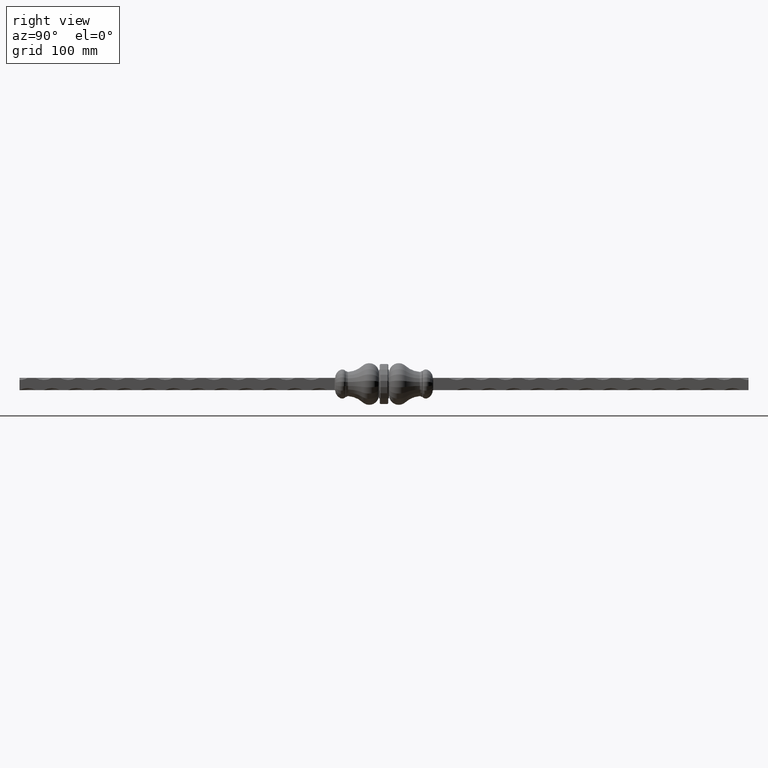
[diagram: clean part render]
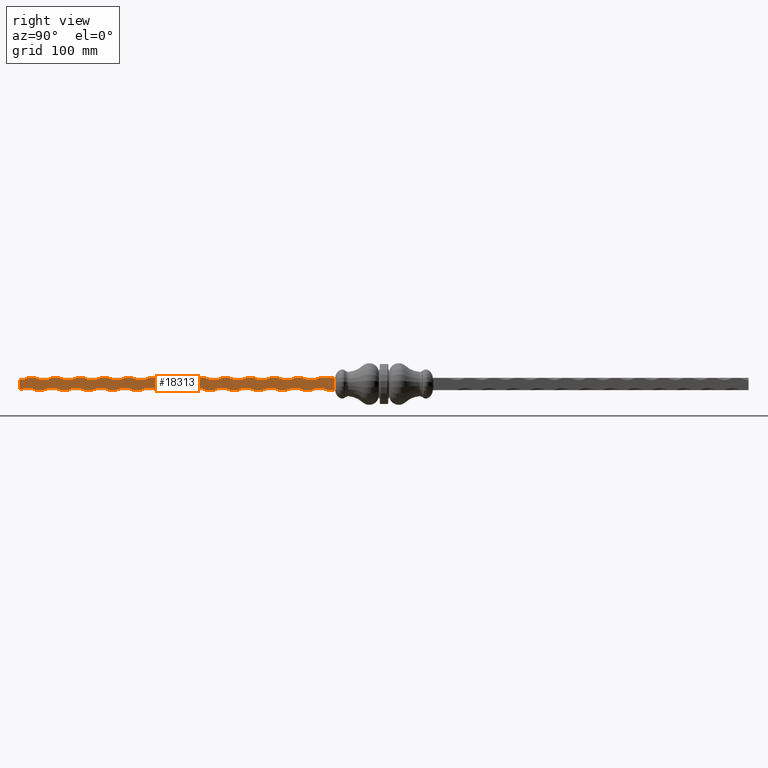
[diagram: same view with one face highlighted and labeled with its STEP entity id]
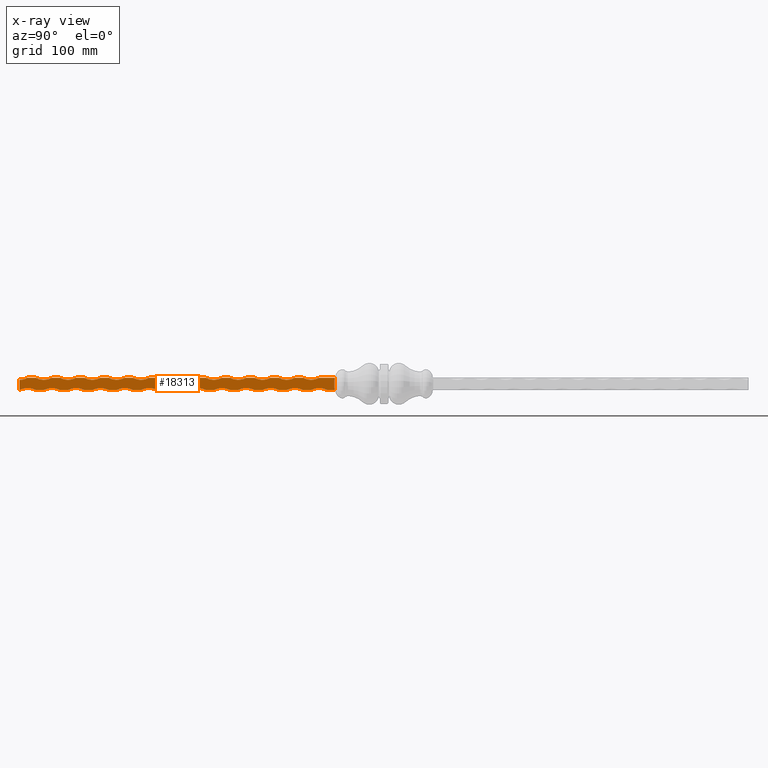
[diagram: x-ray of the same camera — body ghosted, the highlighted face saturated]
A machine part, right view. The second image highlights one B-rep face of the part: STEP entity #18313.
The next image is the same camera in x-ray: the body ghosted, the highlighted face saturated — about 0% of this face is hidden behind the body in this view.
In plain terms, the highlighted planar face has unit normal (-1, 0, 0).
Its self-contained STEP definition (entity closure, byte-faithful):
#38 = ORIENTED_EDGE ( 'NONE', *, *, #4519, .T. ) ;
#56 = DIRECTION ( 'NONE',  ( 1.000000000000000000, -0.000000000000000000, -1.156482317317871478E-16 ) ) ;
#57 = AXIS2_PLACEMENT_3D ( 'NONE', #19237, #8404, #10575 ) ;
#141 = CIRCLE ( 'NONE', #57, 21.25000000000003553 ) ;
#171 = VERTEX_POINT ( 'NONE', #2277 ) ;
#244 = CARTESIAN_POINT ( 'NONE',  ( 7.500000000000001776, 450.0000000000000000, 7.499999999999998224 ) ) ;
#403 = CARTESIAN_POINT ( 'NONE',  ( 7.500000000000004441, -300.0000000000000000, 26.25000000000003197 ) ) ;
#568 = ORIENTED_EDGE ( 'NONE', *, *, #13285, .F. ) ;
#579 = VERTEX_POINT ( 'NONE', #1769 ) ;
#605 = AXIS2_PLACEMENT_3D ( 'NONE', #27104, #5479, #26919 ) ;
#620 = LINE ( 'NONE', #20549, #9075 ) ;
#633 = VERTEX_POINT ( 'NONE', #9054 ) ;
#660 = DIRECTION ( 'NONE',  ( -1.000000000000000000, 0.000000000000000000, 1.156482317317871478E-16 ) ) ;
#667 = EDGE_CURVE ( 'NONE', #579, #22342, #19952, .T. ) ;
#708 = EDGE_CURVE ( 'NONE', #11900, #20075, #15874, .T. ) ;
#709 = CARTESIAN_POINT ( 'NONE',  ( 7.500000000000000000, -61.12594891179882239, -5.587195937505716081 ) ) ;
#721 = VERTEX_POINT ( 'NONE', #20083 ) ;
#740 = VERTEX_POINT ( 'NONE', #24669 ) ;
#767 = DIRECTION ( 'NONE',  ( -0.000000000000000000, -1.000000000000000000, -0.000000000000000000 ) ) ;
#1055 = ORIENTED_EDGE ( 'NONE', *, *, #15077, .T. ) ;
#1172 = CARTESIAN_POINT ( 'NONE',  ( 7.500000000000000000, 450.0000000000000000, -7.500000000000001776 ) ) ;
#1218 = VERTEX_POINT ( 'NONE', #23211 ) ;
#1247 = ORIENTED_EDGE ( 'NONE', *, *, #16725, .F. ) ;
#1338 = CARTESIAN_POINT ( 'NONE',  ( 7.500000000000001776, -60.78303146263080947, 7.499999999999998224 ) ) ;
#1339 = VERTEX_POINT ( 'NONE', #19548 ) ;
#1364 = AXIS2_PLACEMENT_3D ( 'NONE', #14146, #3300, #20865 ) ;
#1401 = DIRECTION ( 'NONE',  ( 1.000000000000000000, -0.000000000000000000, -1.156482317317871478E-16 ) ) ;
#1446 = ORIENTED_EDGE ( 'NONE', *, *, #17472, .F. ) ;
#1494 = CARTESIAN_POINT ( 'NONE',  ( 7.500000000000004441, -239.9999999999999432, 26.25000000000003197 ) ) ;
#1515 = AXIS2_PLACEMENT_3D ( 'NONE', #28102, #6592, #15338 ) ;
#1534 = EDGE_CURVE ( 'NONE', #4331, #13459, #15178, .T. ) ;
#1595 = EDGE_CURVE ( 'NONE', #1597, #24989, #5695, .T. ) ;
#1597 = VERTEX_POINT ( 'NONE', #2613 ) ;
#1627 = EDGE_CURVE ( 'NONE', #721, #26566, #18844, .T. ) ;
#1637 = VECTOR ( 'NONE', #20370, 1000.000000000000000 ) ;
#1702 = CARTESIAN_POINT ( 'NONE',  ( 7.500000000000004441, -90.00000000000002842, 26.25000000000003197 ) ) ;
#1745 = CARTESIAN_POINT ( 'NONE',  ( 7.500000000000001776, -220.0000000000000284, 7.499999999999998224 ) ) ;
#1769 = CARTESIAN_POINT ( 'NONE',  ( 7.500000000000000000, -120.0000000000000568, -7.500000000000000000 ) ) ;
#1776 = EDGE_CURVE ( 'NONE', #13647, #3378, #3659, .T. ) ;
#1787 = DIRECTION ( 'NONE',  ( -0.000000000000000000, -1.000000000000000000, -0.000000000000000000 ) ) ;
#1833 = LINE ( 'NONE', #21567, #6991 ) ;
#1847 = ORIENTED_EDGE ( 'NONE', *, *, #10016, .T. ) ;
#1954 = FACE_OUTER_BOUND ( 'NONE', #9462, .T. ) ;
#2034 = EDGE_CURVE ( 'NONE', #4404, #8729, #9766, .T. ) ;
#2130 = CARTESIAN_POINT ( 'NONE',  ( 7.499999999999993783, -229.9999999999999147, -26.25000000000003553 ) ) ;
#2203 = VECTOR ( 'NONE', #26663, 1000.000000000000000 ) ;
#2219 = PLANE ( 'NONE',  #10090 ) ;
#2225 = VERTEX_POINT ( 'NONE', #24816 ) ;
#2243 = CARTESIAN_POINT ( 'NONE',  ( 7.500000000000004441, -389.9999999999999432, 26.25000000000003197 ) ) ;
#2269 = CARTESIAN_POINT ( 'NONE',  ( 7.500000000000001776, 450.0000000000000000, 7.499999999999998224 ) ) ;
#2277 = CARTESIAN_POINT ( 'NONE',  ( 7.500000000000001776, -159.9999999999999716, 7.499999999999998224 ) ) ;
#2278 = VECTOR ( 'NONE', #14296, 1000.000000000000000 ) ;
#2296 = ORIENTED_EDGE ( 'NONE', *, *, #26938, .T. ) ;
#2357 = ORIENTED_EDGE ( 'NONE', *, *, #20326, .T. ) ;
#2405 = EDGE_CURVE ( 'NONE', #25012, #14819, #11807, .T. ) ;
#2444 = DIRECTION ( 'NONE',  ( -1.156482317317871478E-16, -0.000000000000000000, -1.000000000000000000 ) ) ;
#2527 = VERTEX_POINT ( 'NONE', #10867 ) ;
#2613 = CARTESIAN_POINT ( 'NONE',  ( 7.500000000000001776, -450.0000000000000000, 4.999999999999997335 ) ) ;
#2793 = VERTEX_POINT ( 'NONE', #12169 ) ;
#2800 = ORIENTED_EDGE ( 'NONE', *, *, #5747, .F. ) ;
#2814 = CARTESIAN_POINT ( 'NONE',  ( 7.500000000000001776, -249.9999999999999432, 7.499999999999998224 ) ) ;
#2829 = CARTESIAN_POINT ( 'NONE',  ( 7.500000000000004441, -210.0000000000000284, 26.25000000000003197 ) ) ;
#2902 = LINE ( 'NONE', #14332, #22196 ) ;
#2920 = CARTESIAN_POINT ( 'NONE',  ( 7.499999999999993783, -320.0000000000000000, -26.25000000000003553 ) ) ;
#3038 = DIRECTION ( 'NONE',  ( -1.000000000000000000, 0.000000000000000000, 1.156482317317871478E-16 ) ) ;
#3241 = CARTESIAN_POINT ( 'NONE',  ( 7.500000000000000000, -61.19999999999999574, -4.580747457131031375 ) ) ;
#3300 = DIRECTION ( 'NONE',  ( -1.000000000000000000, 0.000000000000000000, 1.156482317317871478E-16 ) ) ;
#3378 = VERTEX_POINT ( 'NONE', #23215 ) ;
#3381 = CARTESIAN_POINT ( 'NONE',  ( 7.500000000000001776, -310.0000000000000000, 7.499999999999998224 ) ) ;
#3412 =( BOUNDED_CURVE ( )  B_SPLINE_CURVE ( 3, ( #9385, #26399, #7153, #709 ),
 .UNSPECIFIED., .F., .F. ) 
 B_SPLINE_CURVE_WITH_KNOTS ( ( 4, 4 ),
 ( 4.369369659922995197, 4.463332333781194095 ),
 .UNSPECIFIED. ) 
 CURVE ( )  GEOMETRIC_REPRESENTATION_ITEM ( )  RATIONAL_B_SPLINE_CURVE ( ( 1.000000000000000000, 0.9992643866483557069, 0.9992643866483557069, 1.000000000000000000 ) ) 
 REPRESENTATION_ITEM ( '' )  );
#3445 = DIRECTION ( 'NONE',  ( 1.000000000000000000, -0.000000000000000000, -1.156482317317871478E-16 ) ) ;
#3490 = DIRECTION ( 'NONE',  ( -0.000000000000000000, -1.000000000000000000, -0.000000000000000000 ) ) ;
#3559 = EDGE_CURVE ( 'NONE', #11254, #2793, #11413, .T. ) ;
#3611 = ORIENTED_EDGE ( 'NONE', *, *, #3646, .F. ) ;
#3621 = ORIENTED_EDGE ( 'NONE', *, *, #18013, .T. ) ;
#3646 = EDGE_CURVE ( 'NONE', #1218, #7678, #6008, .T. ) ;
#3650 = VERTEX_POINT ( 'NONE', #3381 ) ;
#3659 = CIRCLE ( 'NONE', #21028, 21.25000000000003197 ) ;
#3673 = CARTESIAN_POINT ( 'NONE',  ( 7.500000000000001776, -61.12594891179882239, 5.587195937505693877 ) ) ;
#3715 = VECTOR ( 'NONE', #26784, 1000.000000000000000 ) ;
#3925 =( BOUNDED_CURVE ( )  B_SPLINE_CURVE ( 3, ( #3241, #20513, #26746, #9557 ),
 .UNSPECIFIED., .F., .F. ) 
 B_SPLINE_CURVE_WITH_KNOTS ( ( 4, 4 ),
 ( 1.570796326794896780, 1.819852973398392360 ),
 .UNSPECIFIED. ) 
 CURVE ( )  GEOMETRIC_REPRESENTATION_ITEM ( )  RATIONAL_B_SPLINE_CURVE ( ( 1.000000000000000000, 0.9948375753481484285, 0.9948375753481484285, 1.000000000000000000 ) ) 
 REPRESENTATION_ITEM ( '' )  );
#4144 = ORIENTED_EDGE ( 'NONE', *, *, #23986, .F. ) ;
#4160 = CARTESIAN_POINT ( 'NONE',  ( 7.500000000000001776, -61.19999999999999574, 4.920602893082785201 ) ) ;
#4261 = CARTESIAN_POINT ( 'NONE',  ( 7.500000000000004441, -120.0000000000000568, 26.25000000000003197 ) ) ;
#4331 = VERTEX_POINT ( 'NONE', #25752 ) ;
#4348 = DIRECTION ( 'NONE',  ( -0.000000000000000000, -1.000000000000000000, -0.000000000000000000 ) ) ;
#4404 = VERTEX_POINT ( 'NONE', #18273 ) ;
#4428 = DIRECTION ( 'NONE',  ( -0.000000000000000000, -1.000000000000000000, -0.000000000000000000 ) ) ;
#4474 = EDGE_CURVE ( 'NONE', #4404, #15381, #9663, .T. ) ;
#4519 = EDGE_CURVE ( 'NONE', #13647, #8346, #2902, .T. ) ;
#4554 = DIRECTION ( 'NONE',  ( -1.000000000000000000, 0.000000000000000000, 1.156482317317871478E-16 ) ) ;
#4688 = ORIENTED_EDGE ( 'NONE', *, *, #18785, .F. ) ;
#4692 = DIRECTION ( 'NONE',  ( -0.000000000000000000, -1.000000000000000000, -0.000000000000000000 ) ) ;
#4882 = VERTEX_POINT ( 'NONE', #6893 ) ;
#4995 = CARTESIAN_POINT ( 'NONE',  ( 7.500000000000000000, 450.0000000000000000, -7.500000000000001776 ) ) ;
#5001 = VERTEX_POINT ( 'NONE', #13735 ) ;
#5015 = DIRECTION ( 'NONE',  ( 1.224510688924802876E-16, 0.000000000000000000, 1.000000000000000000 ) ) ;
#5069 = LINE ( 'NONE', #244, #21999 ) ;
#5077 = CARTESIAN_POINT ( 'NONE',  ( 7.500000000000000000, -259.9999999999999432, 7.499999999999998224 ) ) ;
#5236 = VECTOR ( 'NONE', #12960, 1000.000000000000000 ) ;
#5360 = CIRCLE ( 'NONE', #10818, 21.25000000000003197 ) ;
#5479 = DIRECTION ( 'NONE',  ( -1.000000000000000000, 0.000000000000000000, 1.156482317317871478E-16 ) ) ;
#5695 = CIRCLE ( 'NONE', #13247, 21.25000000000003197 ) ;
#5701 = EDGE_CURVE ( 'NONE', #21391, #15381, #11117, .T. ) ;
#5744 = ORIENTED_EDGE ( 'NONE', *, *, #12832, .T. ) ;
#5747 = EDGE_CURVE ( 'NONE', #10546, #8346, #5360, .T. ) ;
#5862 = CARTESIAN_POINT ( 'NONE',  ( 7.500000000000000000, -61.02929897039598472, 6.233702365769654641 ) ) ;
#5883 = DIRECTION ( 'NONE',  ( 1.000000000000000000, -0.000000000000000000, -1.156482317317871478E-16 ) ) ;
#6008 = LINE ( 'NONE', #18356, #22602 ) ;
#6140 = LINE ( 'NONE', #20738, #26514 ) ;
#6187 = AXIS2_PLACEMENT_3D ( 'NONE', #1494, #1401, #25277 ) ;
#6233 = VERTEX_POINT ( 'NONE', #18136 ) ;
#6247 = ORIENTED_EDGE ( 'NONE', *, *, #27934, .F. ) ;
#6316 = EDGE_CURVE ( 'NONE', #2527, #10665, #18809, .T. ) ;
#6491 = CARTESIAN_POINT ( 'NONE',  ( 7.500000000000000000, -149.9999999999999716, -7.500000000000000000 ) ) ;
#6586 = CARTESIAN_POINT ( 'NONE',  ( 7.500000000000000000, -110.0000000000000426, 7.499999999999998224 ) ) ;
#6588 = CARTESIAN_POINT ( 'NONE',  ( 7.500000000000004441, -180.0000000000000000, 26.25000000000003197 ) ) ;
#6592 = DIRECTION ( 'NONE',  ( -1.000000000000000000, 0.000000000000000000, 1.156482317317871478E-16 ) ) ;
#6644 = DIRECTION ( 'NONE',  ( -0.000000000000000000, -1.000000000000000000, -0.000000000000000000 ) ) ;
#6654 = CARTESIAN_POINT ( 'NONE',  ( 7.500000000000000000, 450.0000000000000000, -7.500000000000001776 ) ) ;
#6711 = CARTESIAN_POINT ( 'NONE',  ( 7.499999999999996447, -340.0000000000000000, -7.500000000000000000 ) ) ;
#6750 = CARTESIAN_POINT ( 'NONE',  ( 7.500000000000000000, -450.0000000000000000, -7.500000000000001776 ) ) ;
#6890 = CARTESIAN_POINT ( 'NONE',  ( 7.500000000000001776, 450.0000000000000000, 7.499999999999998224 ) ) ;
#6893 = CARTESIAN_POINT ( 'NONE',  ( 7.500000000000000000, -269.9999999999999432, -7.500000000000000000 ) ) ;
#6939 = EDGE_CURVE ( 'NONE', #10104, #27819, #20007, .T. ) ;
#6954 = DIRECTION ( 'NONE',  ( -1.000000000000000000, 0.000000000000000000, 1.156482317317871478E-16 ) ) ;
#6969 = LINE ( 'NONE', #10963, #11330 ) ;
#6970 = ORIENTED_EDGE ( 'NONE', *, *, #25714, .F. ) ;
#6991 = VECTOR ( 'NONE', #4348, 1000.000000000000000 ) ;
#7113 = ORIENTED_EDGE ( 'NONE', *, *, #7411, .T. ) ;
#7153 = CARTESIAN_POINT ( 'NONE',  ( 7.499999999999998224, -61.02929897039598472, -6.233702365769677733 ) ) ;
#7181 = CARTESIAN_POINT ( 'NONE',  ( 7.500000000000000000, -350.0000000000000568, 7.499999999999998224 ) ) ;
#7225 = VERTEX_POINT ( 'NONE', #24689 ) ;
#7310 = VECTOR ( 'NONE', #16112, 1000.000000000000000 ) ;
#7398 = VECTOR ( 'NONE', #18472, 1000.000000000000000 ) ;
#7411 = EDGE_CURVE ( 'NONE', #18396, #16906, #11013, .T. ) ;
#7422 = CIRCLE ( 'NONE', #16658, 21.25000000000003553 ) ;
#7571 = CARTESIAN_POINT ( 'NONE',  ( 7.500000000000000000, -61.19999999999999574, -4.580747457131031375 ) ) ;
#7640 = LINE ( 'NONE', #20892, #27961 ) ;
#7678 = VERTEX_POINT ( 'NONE', #27696 ) ;
#7703 = VECTOR ( 'NONE', #21366, 1000.000000000000000 ) ;
#7752 = AXIS2_PLACEMENT_3D ( 'NONE', #21947, #24145, #19830 ) ;
#7767 = CIRCLE ( 'NONE', #1364, 21.25000000000003553 ) ;
#7860 = AXIS2_PLACEMENT_3D ( 'NONE', #11454, #3038, #26576 ) ;
#7983 = DIRECTION ( 'NONE',  ( 1.000000000000000000, -0.000000000000000000, -1.156482317317871478E-16 ) ) ;
#8086 = VECTOR ( 'NONE', #6644, 1000.000000000000000 ) ;
#8143 = EDGE_CURVE ( 'NONE', #721, #10193, #16030, .T. ) ;
#8144 = CIRCLE ( 'NONE', #605, 21.25000000000003553 ) ;
#8175 = DIRECTION ( 'NONE',  ( 1.224510688924803123E-16, 0.000000000000000000, 1.000000000000000000 ) ) ;
#8269 = EDGE_CURVE ( 'NONE', #11254, #13959, #3925, .T. ) ;
#8326 = EDGE_CURVE ( 'NONE', #740, #21580, #7640, .T. ) ;
#8346 = VERTEX_POINT ( 'NONE', #18498 ) ;
#8404 = DIRECTION ( 'NONE',  ( -1.000000000000000000, 0.000000000000000000, 1.156482317317871478E-16 ) ) ;
#8507 = CARTESIAN_POINT ( 'NONE',  ( 7.500000000000001776, -61.17518821496220482, 5.257826611913627879 ) ) ;
#8538 = EDGE_CURVE ( 'NONE', #19955, #5001, #1833, .T. ) ;
#8634 = CIRCLE ( 'NONE', #6187, 21.25000000000003197 ) ;
#8639 = VERTEX_POINT ( 'NONE', #11711 ) ;
#8651 = EDGE_CURVE ( 'NONE', #9027, #10313, #8634, .T. ) ;
#8729 = VERTEX_POINT ( 'NONE', #23069 ) ;
#8737 = CARTESIAN_POINT ( 'NONE',  ( 7.500000000000000000, 450.0000000000000000, -7.500000000000001776 ) ) ;
#8745 = CARTESIAN_POINT ( 'NONE',  ( 7.499999999999996447, -100.0000000000000284, -7.500000000000000000 ) ) ;
#8799 = LINE ( 'NONE', #13833, #1637 ) ;
#8826 = ORIENTED_EDGE ( 'NONE', *, *, #22683, .T. ) ;
#8867 = EDGE_CURVE ( 'NONE', #1597, #15502, #24573, .T. ) ;
#9027 = VERTEX_POINT ( 'NONE', #2814 ) ;
#9051 = ORIENTED_EDGE ( 'NONE', *, *, #25039, .F. ) ;
#9054 = CARTESIAN_POINT ( 'NONE',  ( 7.499999999999996447, -219.9999999999999147, -7.500000000000000000 ) ) ;
#9075 = VECTOR ( 'NONE', #18148, 1000.000000000000000 ) ;
#9280 = ORIENTED_EDGE ( 'NONE', *, *, #6316, .F. ) ;
#9385 = CARTESIAN_POINT ( 'NONE',  ( 7.500000000000000000, -60.78303146263080947, -7.500000000000001776 ) ) ;
#9406 = DIRECTION ( 'NONE',  ( 1.000000000000000000, -0.000000000000000000, -1.156482317317871478E-16 ) ) ;
#9428 = DIRECTION ( 'NONE',  ( 1.224510688924802876E-16, 0.000000000000000000, 1.000000000000000000 ) ) ;
#9462 = EDGE_LOOP ( 'NONE', ( #9937, #17041, #11811, #3611, #1847, #15519, #19028, #16573, #17032, #6970, #18344, #10878, #9844, #25518, #11199, #6247, #28060, #17438, #23799, #1247, #21351, #25402, #2296, #22339, #13574, #9280, #5744, #25732, #13495, #24970, #19296, #24819, #12991, #8826, #4688, #14347, #21421, #7113, #1446, #1055, #13836, #38, #2800, #18281, #10834, #25493, #14930, #14761, #4144, #2357, #9051, #17119, #13209, #25652, #568, #27892, #23091, #3621 ) ) ;
#9492 = CARTESIAN_POINT ( 'NONE',  ( 7.500000000000001776, -399.9999999999999432, 7.499999999999998224 ) ) ;
#9557 = CARTESIAN_POINT ( 'NONE',  ( 7.500000000000000000, -61.12594891179882239, -5.587195937505716081 ) ) ;
#9663 = LINE ( 'NONE', #27004, #7310 ) ;
#9766 = CIRCLE ( 'NONE', #19390, 21.25000000000003553 ) ;
#9844 = ORIENTED_EDGE ( 'NONE', *, *, #2034, .T. ) ;
#9907 = AXIS2_PLACEMENT_3D ( 'NONE', #2920, #660, #9428 ) ;
#9937 = ORIENTED_EDGE ( 'NONE', *, *, #1595, .F. ) ;
#10016 = EDGE_CURVE ( 'NONE', #1218, #20075, #141, .T. ) ;
#10025 = CARTESIAN_POINT ( 'NONE',  ( 7.499999999999993783, -440.0000000000000000, -26.25000000000003553 ) ) ;
#10090 = AXIS2_PLACEMENT_3D ( 'NONE', #8737, #10915, #11004 ) ;
#10104 = VERTEX_POINT ( 'NONE', #21937 ) ;
#10137 = LINE ( 'NONE', #26036, #21636 ) ;
#10193 = VERTEX_POINT ( 'NONE', #22030 ) ;
#10313 = VERTEX_POINT ( 'NONE', #24682 ) ;
#10325 = VECTOR ( 'NONE', #21533, 1000.000000000000000 ) ;
#10339 = AXIS2_PLACEMENT_3D ( 'NONE', #12622, #7983, #8175 ) ;
#10394 = CARTESIAN_POINT ( 'NONE',  ( 7.500000000000001776, -61.19999999999999574, 4.580747457131007394 ) ) ;
#10417 = DIRECTION ( 'NONE',  ( -1.000000000000000000, 0.000000000000000000, 1.156482317317871478E-16 ) ) ;
#10481 = CARTESIAN_POINT ( 'NONE',  ( 7.500000000000000000, -239.9999999999999432, -7.500000000000000000 ) ) ;
#10542 = CARTESIAN_POINT ( 'NONE',  ( 7.500000000000000000, -410.0000000000000000, 7.499999999999998224 ) ) ;
#10546 = VERTEX_POINT ( 'NONE', #1745 ) ;
#10575 = DIRECTION ( 'NONE',  ( 1.224510688924802876E-16, 0.000000000000000000, 1.000000000000000000 ) ) ;
#10584 = DIRECTION ( 'NONE',  ( 1.224510688924803123E-16, 0.000000000000000000, 1.000000000000000000 ) ) ;
#10604 = CIRCLE ( 'NONE', #20492, 21.25000000000003197 ) ;
#10665 = VERTEX_POINT ( 'NONE', #8745 ) ;
#10682 = CIRCLE ( 'NONE', #24379, 21.25000000000003553 ) ;
#10818 = AXIS2_PLACEMENT_3D ( 'NONE', #2829, #13756, #26712 ) ;
#10834 = ORIENTED_EDGE ( 'NONE', *, *, #8651, .F. ) ;
#10842 = VECTOR ( 'NONE', #23437, 1000.000000000000000 ) ;
#10858 = EDGE_CURVE ( 'NONE', #6233, #14819, #17269, .T. ) ;
#10867 = CARTESIAN_POINT ( 'NONE',  ( 7.500000000000000000, -90.00000000000002842, -7.500000000000000000 ) ) ;
#10878 = ORIENTED_EDGE ( 'NONE', *, *, #4474, .F. ) ;
#10915 = DIRECTION ( 'NONE',  ( -1.000000000000000000, 0.000000000000000000, 1.156482317317871478E-16 ) ) ;
#10963 = CARTESIAN_POINT ( 'NONE',  ( 7.500000000000001776, 450.0000000000000000, 7.499999999999998224 ) ) ;
#11004 = DIRECTION ( 'NONE',  ( 1.156482317317871478E-16, 0.000000000000000000, 1.000000000000000000 ) ) ;
#11010 = CARTESIAN_POINT ( 'NONE',  ( 7.500000000000000000, -330.0000000000000000, -7.500000000000000000 ) ) ;
#11013 = LINE ( 'NONE', #14898, #10325 ) ;
#11018 = AXIS2_PLACEMENT_3D ( 'NONE', #1702, #5883, #20997 ) ;
#11094 = DIRECTION ( 'NONE',  ( -1.000000000000000000, 0.000000000000000000, 1.156482317317871478E-16 ) ) ;
#11117 = CIRCLE ( 'NONE', #9907, 21.25000000000003553 ) ;
#11199 = ORIENTED_EDGE ( 'NONE', *, *, #13683, .T. ) ;
#11254 = VERTEX_POINT ( 'NONE', #7571 ) ;
#11277 = DIRECTION ( 'NONE',  ( 1.224510688924802876E-16, 0.000000000000000000, 1.000000000000000000 ) ) ;
#11330 = VECTOR ( 'NONE', #15291, 1000.000000000000000 ) ;
#11380 = CARTESIAN_POINT ( 'NONE',  ( 7.500000000000001776, -130.0000000000000568, 7.499999999999998224 ) ) ;
#11400 = CARTESIAN_POINT ( 'NONE',  ( 7.500000000000000000, -440.0000000000000000, 7.499999999999998224 ) ) ;
#11413 = LINE ( 'NONE', #20034, #24307 ) ;
#11454 = CARTESIAN_POINT ( 'NONE',  ( 7.499999999999993783, -379.9999999999999432, -26.25000000000003553 ) ) ;
#11515 = LINE ( 'NONE', #13000, #10842 ) ;
#11633 = CARTESIAN_POINT ( 'NONE',  ( 7.500000000000000000, -210.0000000000000284, -7.500000000000000000 ) ) ;
#11711 = CARTESIAN_POINT ( 'NONE',  ( 7.500000000000000000, -320.0000000000000000, 7.499999999999998224 ) ) ;
#11807 = LINE ( 'NONE', #21559, #27099 ) ;
#11811 = ORIENTED_EDGE ( 'NONE', *, *, #18590, .T. ) ;
#11900 = VERTEX_POINT ( 'NONE', #20651 ) ;
#12043 = LINE ( 'NONE', #22268, #26651 ) ;
#12055 = DIRECTION ( 'NONE',  ( -0.000000000000000000, -1.000000000000000000, -0.000000000000000000 ) ) ;
#12169 = CARTESIAN_POINT ( 'NONE',  ( 7.500000000000001776, -61.19999999999999574, 4.580747457131007394 ) ) ;
#12211 = DIRECTION ( 'NONE',  ( -0.000000000000000000, -1.000000000000000000, -0.000000000000000000 ) ) ;
#12221 = DIRECTION ( 'NONE',  ( 1.224510688924802876E-16, 0.000000000000000000, 1.000000000000000000 ) ) ;
#12222 = CARTESIAN_POINT ( 'NONE',  ( 7.500000000000000000, -61.12594891179882239, -5.587195937505716081 ) ) ;
#12299 = EDGE_CURVE ( 'NONE', #4331, #22777, #5069, .T. ) ;
#12455 = LINE ( 'NONE', #22795, #7398 ) ;
#12485 = DIRECTION ( 'NONE',  ( -1.000000000000000000, 0.000000000000000000, 1.156482317317871478E-16 ) ) ;
#12622 = CARTESIAN_POINT ( 'NONE',  ( 7.500000000000004441, -360.0000000000000568, 26.25000000000003197 ) ) ;
#12676 = DIRECTION ( 'NONE',  ( 1.000000000000000000, -0.000000000000000000, -1.156482317317871478E-16 ) ) ;
#12832 = EDGE_CURVE ( 'NONE', #2527, #21580, #7422, .T. ) ;
#12960 = DIRECTION ( 'NONE',  ( -0.000000000000000000, -1.000000000000000000, -0.000000000000000000 ) ) ;
#12991 = ORIENTED_EDGE ( 'NONE', *, *, #6939, .T. ) ;
#13000 = CARTESIAN_POINT ( 'NONE',  ( 7.500000000000001776, 450.0000000000000000, 7.499999999999998224 ) ) ;
#13060 = CARTESIAN_POINT ( 'NONE',  ( 7.499999999999996447, -310.0000000000000000, -7.500000000000000000 ) ) ;
#13154 = DIRECTION ( 'NONE',  ( 1.224510688924803123E-16, 0.000000000000000000, 1.000000000000000000 ) ) ;
#13168 = CIRCLE ( 'NONE', #7752, 21.25000000000003197 ) ;
#13201 = DIRECTION ( 'NONE',  ( 1.000000000000000000, -0.000000000000000000, -1.156482317317871478E-16 ) ) ;
#13209 = ORIENTED_EDGE ( 'NONE', *, *, #1534, .F. ) ;
#13247 = AXIS2_PLACEMENT_3D ( 'NONE', #17457, #22521, #23685 ) ;
#13285 = EDGE_CURVE ( 'NONE', #25012, #22777, #10604, .T. ) ;
#13413 = DIRECTION ( 'NONE',  ( -1.000000000000000000, 0.000000000000000000, 1.156482317317871478E-16 ) ) ;
#13459 = VERTEX_POINT ( 'NONE', #7181 ) ;
#13495 = ORIENTED_EDGE ( 'NONE', *, *, #18338, .T. ) ;
#13574 = ORIENTED_EDGE ( 'NONE', *, *, #15377, .T. ) ;
#13623 = VERTEX_POINT ( 'NONE', #6491 ) ;
#13631 = DIRECTION ( 'NONE',  ( -0.000000000000000000, -1.000000000000000000, -0.000000000000000000 ) ) ;
#13647 = VERTEX_POINT ( 'NONE', #16642 ) ;
#13683 = EDGE_CURVE ( 'NONE', #4882, #14585, #14316, .T. ) ;
#13735 = CARTESIAN_POINT ( 'NONE',  ( 7.500000000000000000, -290.0000000000000000, 7.499999999999998224 ) ) ;
#13745 = CIRCLE ( 'NONE', #16099, 21.25000000000003197 ) ;
#13756 = DIRECTION ( 'NONE',  ( 1.000000000000000000, -0.000000000000000000, -1.156482317317871478E-16 ) ) ;
#13765 = AXIS2_PLACEMENT_3D ( 'NONE', #20324, #4554, #19014 ) ;
#13833 = CARTESIAN_POINT ( 'NONE',  ( 7.500000000000000000, 450.0000000000000000, -7.500000000000001776 ) ) ;
#13836 = ORIENTED_EDGE ( 'NONE', *, *, #1776, .F. ) ;
#13959 = VERTEX_POINT ( 'NONE', #12222 ) ;
#14008 = EDGE_CURVE ( 'NONE', #19955, #17906, #23470, .T. ) ;
#14146 = CARTESIAN_POINT ( 'NONE',  ( 7.499999999999993783, -200.0000000000000000, -26.25000000000003553 ) ) ;
#14196 = DIRECTION ( 'NONE',  ( 1.224510688924803123E-16, 0.000000000000000000, 1.000000000000000000 ) ) ;
#14296 = DIRECTION ( 'NONE',  ( -0.000000000000000000, -1.000000000000000000, -0.000000000000000000 ) ) ;
#14316 = CIRCLE ( 'NONE', #20872, 21.25000000000003553 ) ;
#14332 = CARTESIAN_POINT ( 'NONE',  ( 7.500000000000001776, 450.0000000000000000, 7.499999999999998224 ) ) ;
#14347 = ORIENTED_EDGE ( 'NONE', *, *, #24340, .T. ) ;
#14368 = CARTESIAN_POINT ( 'NONE',  ( 7.499999999999996447, -399.9999999999999432, -7.500000000000000000 ) ) ;
#14535 = CARTESIAN_POINT ( 'NONE',  ( 7.500000000000001776, -100.0000000000000284, 7.499999999999998224 ) ) ;
#14585 = VERTEX_POINT ( 'NONE', #15573 ) ;
#14648 = CARTESIAN_POINT ( 'NONE',  ( 7.500000000000001776, -61.12594891179882239, 5.587195937505693877 ) ) ;
#14761 = ORIENTED_EDGE ( 'NONE', *, *, #8538, .T. ) ;
#14819 = VERTEX_POINT ( 'NONE', #10542 ) ;
#14898 = CARTESIAN_POINT ( 'NONE',  ( 7.500000000000001776, 450.0000000000000000, 7.499999999999998224 ) ) ;
#14930 = ORIENTED_EDGE ( 'NONE', *, *, #14008, .F. ) ;
#14940 = VERTEX_POINT ( 'NONE', #21912 ) ;
#15077 = EDGE_CURVE ( 'NONE', #171, #3378, #6140, .T. ) ;
#15178 = CIRCLE ( 'NONE', #10339, 21.25000000000003197 ) ;
#15291 = DIRECTION ( 'NONE',  ( -0.000000000000000000, -1.000000000000000000, -0.000000000000000000 ) ) ;
#15338 = DIRECTION ( 'NONE',  ( 1.224510688924802876E-16, 0.000000000000000000, 1.000000000000000000 ) ) ;
#15377 = EDGE_CURVE ( 'NONE', #579, #10665, #17905, .T. ) ;
#15381 = VERTEX_POINT ( 'NONE', #13060 ) ;
#15502 = VERTEX_POINT ( 'NONE', #6750 ) ;
#15519 = ORIENTED_EDGE ( 'NONE', *, *, #708, .F. ) ;
#15573 = CARTESIAN_POINT ( 'NONE',  ( 7.499999999999996447, -249.9999999999999432, -7.500000000000000000 ) ) ;
#15601 = VERTEX_POINT ( 'NONE', #11633 ) ;
#15685 = DIRECTION ( 'NONE',  ( 1.156482317317871478E-16, -0.000000000000000000, 1.000000000000000000 ) ) ;
#15874 = LINE ( 'NONE', #4995, #20275 ) ;
#15893 = CARTESIAN_POINT ( 'NONE',  ( 7.500000000000004441, -330.0000000000000000, 26.25000000000003197 ) ) ;
#15968 = EDGE_CURVE ( 'NONE', #15601, #2225, #7767, .T. ) ;
#15993 = DIRECTION ( 'NONE',  ( -0.000000000000000000, -1.000000000000000000, -0.000000000000000000 ) ) ;
#16030 = LINE ( 'NONE', #24171, #2203 ) ;
#16099 = AXIS2_PLACEMENT_3D ( 'NONE', #15893, #9406, #18334 ) ;
#16112 = DIRECTION ( 'NONE',  ( -0.000000000000000000, -1.000000000000000000, -0.000000000000000000 ) ) ;
#16468 = CIRCLE ( 'NONE', #26873, 21.25000000000003197 ) ;
#16520 = EDGE_CURVE ( 'NONE', #9027, #17906, #10137, .T. ) ;
#16573 = ORIENTED_EDGE ( 'NONE', *, *, #8143, .F. ) ;
#16619 = DIRECTION ( 'NONE',  ( 1.000000000000000000, -0.000000000000000000, -1.156482317317871478E-16 ) ) ;
#16642 = CARTESIAN_POINT ( 'NONE',  ( 7.500000000000001776, -190.0000000000000000, 7.499999999999998224 ) ) ;
#16658 = AXIS2_PLACEMENT_3D ( 'NONE', #17634, #13413, #5015 ) ;
#16725 = EDGE_CURVE ( 'NONE', #14940, #2225, #8799, .T. ) ;
#16782 = CIRCLE ( 'NONE', #18759, 21.25000000000003553 ) ;
#16906 = VERTEX_POINT ( 'NONE', #23809 ) ;
#16975 = CARTESIAN_POINT ( 'NONE',  ( 7.500000000000001776, 450.0000000000000000, 7.499999999999998224 ) ) ;
#17032 = ORIENTED_EDGE ( 'NONE', *, *, #1627, .T. ) ;
#17041 = ORIENTED_EDGE ( 'NONE', *, *, #8867, .T. ) ;
#17119 = ORIENTED_EDGE ( 'NONE', *, *, #20308, .T. ) ;
#17269 = CIRCLE ( 'NONE', #22178, 21.25000000000003197 ) ;
#17354 = CARTESIAN_POINT ( 'NONE',  ( 7.500000000000000000, 450.0000000000000000, -7.500000000000001776 ) ) ;
#17401 = AXIS2_PLACEMENT_3D ( 'NONE', #25310, #16619, #27770 ) ;
#17431 = EDGE_CURVE ( 'NONE', #4882, #8729, #19560, .T. ) ;
#17438 = ORIENTED_EDGE ( 'NONE', *, *, #17684, .F. ) ;
#17457 = CARTESIAN_POINT ( 'NONE',  ( 7.500000000000004441, -450.0000000000000000, 26.25000000000003197 ) ) ;
#17472 = EDGE_CURVE ( 'NONE', #171, #16906, #13168, .T. ) ;
#17579 = DIRECTION ( 'NONE',  ( 1.224510688924802876E-16, 0.000000000000000000, 1.000000000000000000 ) ) ;
#17634 = CARTESIAN_POINT ( 'NONE',  ( 7.499999999999993783, -80.00000000000001421, -26.25000000000003553 ) ) ;
#17684 = EDGE_CURVE ( 'NONE', #15601, #633, #12455, .T. ) ;
#17905 = CIRCLE ( 'NONE', #19058, 21.25000000000003553 ) ;
#17906 = VERTEX_POINT ( 'NONE', #5077 ) ;
#18013 = EDGE_CURVE ( 'NONE', #6233, #24989, #620, .T. ) ;
#18026 = CARTESIAN_POINT ( 'NONE',  ( 7.500000000000001776, -279.9999999999999432, 7.499999999999998224 ) ) ;
#18111 = VECTOR ( 'NONE', #15993, 1000.000000000000000 ) ;
#18136 = CARTESIAN_POINT ( 'NONE',  ( 7.500000000000001776, -430.0000000000000000, 7.499999999999998224 ) ) ;
#18148 = DIRECTION ( 'NONE',  ( -0.000000000000000000, -1.000000000000000000, -0.000000000000000000 ) ) ;
#18273 = CARTESIAN_POINT ( 'NONE',  ( 7.500000000000000000, -300.0000000000000000, -7.500000000000000000 ) ) ;
#18281 = ORIENTED_EDGE ( 'NONE', *, *, #25002, .T. ) ;
#18313 = ADVANCED_FACE ( 'NONE', ( #1954 ), #2219, .F. ) ;
#18334 = DIRECTION ( 'NONE',  ( 1.224510688924803123E-16, 0.000000000000000000, 1.000000000000000000 ) ) ;
#18338 = EDGE_CURVE ( 'NONE', #740, #13959, #3412, .T. ) ;
#18344 = ORIENTED_EDGE ( 'NONE', *, *, #5701, .T. ) ;
#18356 = CARTESIAN_POINT ( 'NONE',  ( 7.500000000000000000, 450.0000000000000000, -7.500000000000001776 ) ) ;
#18396 = VERTEX_POINT ( 'NONE', #11380 ) ;
#18472 = DIRECTION ( 'NONE',  ( -0.000000000000000000, -1.000000000000000000, -0.000000000000000000 ) ) ;
#18498 = CARTESIAN_POINT ( 'NONE',  ( 7.500000000000000000, -200.0000000000000000, 7.499999999999998224 ) ) ;
#18590 = EDGE_CURVE ( 'NONE', #15502, #7678, #16782, .T. ) ;
#18695 = DIRECTION ( 'NONE',  ( -0.000000000000000000, -1.000000000000000000, -0.000000000000000000 ) ) ;
#18759 = AXIS2_PLACEMENT_3D ( 'NONE', #10025, #12485, #12221 ) ;
#18785 = EDGE_CURVE ( 'NONE', #22177, #7225, #21192, .T. ) ;
#18809 = LINE ( 'NONE', #1172, #2278 ) ;
#18844 = CIRCLE ( 'NONE', #13765, 21.25000000000003553 ) ;
#18858 = CARTESIAN_POINT ( 'NONE',  ( 7.500000000000000000, -60.91490900722245527, 6.871773093280879152 ) ) ;
#18899 = DIRECTION ( 'NONE',  ( 1.224510688924802876E-16, 0.000000000000000000, 1.000000000000000000 ) ) ;
#18982 = CARTESIAN_POINT ( 'NONE',  ( 7.500000000000000000, 450.0000000000000000, -7.500000000000001776 ) ) ;
#19014 = DIRECTION ( 'NONE',  ( 1.224510688924802876E-16, 0.000000000000000000, 1.000000000000000000 ) ) ;
#19028 = ORIENTED_EDGE ( 'NONE', *, *, #26144, .T. ) ;
#19058 = AXIS2_PLACEMENT_3D ( 'NONE', #19853, #6954, #11277 ) ;
#19070 = LINE ( 'NONE', #2269, #23544 ) ;
#19083 = CIRCLE ( 'NONE', #1515, 21.25000000000003553 ) ;
#19237 = CARTESIAN_POINT ( 'NONE',  ( 7.499999999999993783, -410.0000000000000000, -26.25000000000003553 ) ) ;
#19296 = ORIENTED_EDGE ( 'NONE', *, *, #3559, .T. ) ;
#19390 = AXIS2_PLACEMENT_3D ( 'NONE', #21398, #10417, #18899 ) ;
#19548 = CARTESIAN_POINT ( 'NONE',  ( 7.499999999999996447, -159.9999999999999716, -7.500000000000000000 ) ) ;
#19560 = LINE ( 'NONE', #17354, #8086 ) ;
#19573 = DIRECTION ( 'NONE',  ( 1.224510688924803123E-16, 0.000000000000000000, 1.000000000000000000 ) ) ;
#19800 = DIRECTION ( 'NONE',  ( 1.224510688924803123E-16, 0.000000000000000000, 1.000000000000000000 ) ) ;
#19828 = LINE ( 'NONE', #6890, #18111 ) ;
#19830 = DIRECTION ( 'NONE',  ( 1.224510688924803123E-16, 0.000000000000000000, 1.000000000000000000 ) ) ;
#19853 = CARTESIAN_POINT ( 'NONE',  ( 7.499999999999993783, -110.0000000000000426, -26.25000000000003553 ) ) ;
#19952 = LINE ( 'NONE', #22112, #3715 ) ;
#19955 = VERTEX_POINT ( 'NONE', #18026 ) ;
#20007 =( BOUNDED_CURVE ( )  B_SPLINE_CURVE ( 3, ( #3673, #5862, #18858, #27567 ),
 .UNSPECIFIED., .F., .F. ) 
 B_SPLINE_CURVE_WITH_KNOTS ( ( 4, 4 ),
 ( 4.961445626988185253, 5.055408300846385039 ),
 .UNSPECIFIED. ) 
 CURVE ( )  GEOMETRIC_REPRESENTATION_ITEM ( )  RATIONAL_B_SPLINE_CURVE ( ( 1.000000000000000000, 0.9992643866483557069, 0.9992643866483557069, 1.000000000000000000 ) ) 
 REPRESENTATION_ITEM ( '' )  );
#20034 = CARTESIAN_POINT ( 'NONE',  ( 7.500000000000000000, -61.19999999999997442, -7.500000000000001776 ) ) ;
#20075 = VERTEX_POINT ( 'NONE', #14368 ) ;
#20083 = CARTESIAN_POINT ( 'NONE',  ( 7.500000000000000000, -360.0000000000000568, -7.500000000000000000 ) ) ;
#20157 = EDGE_CURVE ( 'NONE', #18396, #25594, #27630, .T. ) ;
#20181 = EDGE_CURVE ( 'NONE', #10104, #2793, #26805, .T. ) ;
#20275 = VECTOR ( 'NONE', #26527, 1000.000000000000000 ) ;
#20308 = EDGE_CURVE ( 'NONE', #27879, #13459, #19070, .T. ) ;
#20324 = CARTESIAN_POINT ( 'NONE',  ( 7.499999999999993783, -350.0000000000000568, -26.25000000000003553 ) ) ;
#20326 = EDGE_CURVE ( 'NONE', #3650, #8639, #6969, .T. ) ;
#20370 = DIRECTION ( 'NONE',  ( -0.000000000000000000, -1.000000000000000000, -0.000000000000000000 ) ) ;
#20430 = LINE ( 'NONE', #6654, #5236 ) ;
#20492 = AXIS2_PLACEMENT_3D ( 'NONE', #2243, #13201, #19800 ) ;
#20513 = CARTESIAN_POINT ( 'NONE',  ( 7.500000000000000000, -61.19999999999999574, -4.920602893082807405 ) ) ;
#20549 = CARTESIAN_POINT ( 'NONE',  ( 7.500000000000001776, 450.0000000000000000, 7.499999999999998224 ) ) ;
#20651 = CARTESIAN_POINT ( 'NONE',  ( 7.500000000000000000, -389.9999999999999432, -7.500000000000000000 ) ) ;
#20738 = CARTESIAN_POINT ( 'NONE',  ( 7.500000000000001776, 450.0000000000000000, 7.499999999999998224 ) ) ;
#20865 = DIRECTION ( 'NONE',  ( 1.224510688924802876E-16, 0.000000000000000000, 1.000000000000000000 ) ) ;
#20872 = AXIS2_PLACEMENT_3D ( 'NONE', #24092, #11094, #17579 ) ;
#20892 = CARTESIAN_POINT ( 'NONE',  ( 7.500000000000000000, 450.0000000000000000, -7.500000000000001776 ) ) ;
#20997 = DIRECTION ( 'NONE',  ( 1.224510688924803123E-16, 0.000000000000000000, 1.000000000000000000 ) ) ;
#21028 = AXIS2_PLACEMENT_3D ( 'NONE', #6588, #56, #19573 ) ;
#21192 = CIRCLE ( 'NONE', #11018, 21.25000000000003197 ) ;
#21351 = ORIENTED_EDGE ( 'NONE', *, *, #22086, .T. ) ;
#21366 = DIRECTION ( 'NONE',  ( -0.000000000000000000, -1.000000000000000000, -0.000000000000000000 ) ) ;
#21370 = AXIS2_PLACEMENT_3D ( 'NONE', #4261, #12676, #10584 ) ;
#21391 = VERTEX_POINT ( 'NONE', #11010 ) ;
#21398 = CARTESIAN_POINT ( 'NONE',  ( 7.499999999999993783, -290.0000000000000000, -26.25000000000003553 ) ) ;
#21421 = ORIENTED_EDGE ( 'NONE', *, *, #20157, .F. ) ;
#21533 = DIRECTION ( 'NONE',  ( -0.000000000000000000, -1.000000000000000000, -0.000000000000000000 ) ) ;
#21559 = CARTESIAN_POINT ( 'NONE',  ( 7.500000000000001776, 450.0000000000000000, 7.499999999999998224 ) ) ;
#21567 = CARTESIAN_POINT ( 'NONE',  ( 7.500000000000001776, 450.0000000000000000, 7.499999999999998224 ) ) ;
#21580 = VERTEX_POINT ( 'NONE', #22554 ) ;
#21617 = CARTESIAN_POINT ( 'NONE',  ( 7.500000000000000000, -379.9999999999999432, 7.499999999999998224 ) ) ;
#21636 = VECTOR ( 'NONE', #4428, 1000.000000000000000 ) ;
#21912 = CARTESIAN_POINT ( 'NONE',  ( 7.500000000000000000, -180.0000000000000000, -7.500000000000000000 ) ) ;
#21937 = CARTESIAN_POINT ( 'NONE',  ( 7.500000000000001776, -61.12594891179882239, 5.587195937505693877 ) ) ;
#21947 = CARTESIAN_POINT ( 'NONE',  ( 7.500000000000004441, -149.9999999999999716, 26.25000000000003197 ) ) ;
#21963 = DIRECTION ( 'NONE',  ( 1.000000000000000000, -0.000000000000000000, -1.156482317317871478E-16 ) ) ;
#21999 = VECTOR ( 'NONE', #4692, 1000.000000000000000 ) ;
#22030 = CARTESIAN_POINT ( 'NONE',  ( 7.499999999999996447, -369.9999999999999432, -7.500000000000000000 ) ) ;
#22086 = EDGE_CURVE ( 'NONE', #14940, #1339, #8144, .T. ) ;
#22112 = CARTESIAN_POINT ( 'NONE',  ( 7.500000000000000000, 450.0000000000000000, -7.500000000000001776 ) ) ;
#22177 = VERTEX_POINT ( 'NONE', #14535 ) ;
#22178 = AXIS2_PLACEMENT_3D ( 'NONE', #24744, #3445, #14196 ) ;
#22196 = VECTOR ( 'NONE', #3490, 1000.000000000000000 ) ;
#22268 = CARTESIAN_POINT ( 'NONE',  ( 7.500000000000000000, 450.0000000000000000, -7.500000000000001776 ) ) ;
#22339 = ORIENTED_EDGE ( 'NONE', *, *, #667, .F. ) ;
#22342 = VERTEX_POINT ( 'NONE', #25558 ) ;
#22521 = DIRECTION ( 'NONE',  ( 1.000000000000000000, -0.000000000000000000, -1.156482317317871478E-16 ) ) ;
#22554 = CARTESIAN_POINT ( 'NONE',  ( 7.499999999999996447, -70.00000000000000000, -7.500000000000000000 ) ) ;
#22602 = VECTOR ( 'NONE', #22949, 1000.000000000000000 ) ;
#22683 = EDGE_CURVE ( 'NONE', #27819, #7225, #11515, .T. ) ;
#22777 = VERTEX_POINT ( 'NONE', #21617 ) ;
#22795 = CARTESIAN_POINT ( 'NONE',  ( 7.500000000000000000, 450.0000000000000000, -7.500000000000001776 ) ) ;
#22949 = DIRECTION ( 'NONE',  ( -0.000000000000000000, -1.000000000000000000, -0.000000000000000000 ) ) ;
#23069 = CARTESIAN_POINT ( 'NONE',  ( 7.499999999999996447, -279.9999999999999432, -7.500000000000000000 ) ) ;
#23091 = ORIENTED_EDGE ( 'NONE', *, *, #10858, .F. ) ;
#23195 = VECTOR ( 'NONE', #2444, 1000.000000000000000 ) ;
#23211 = CARTESIAN_POINT ( 'NONE',  ( 7.500000000000000000, -420.0000000000000000, -7.500000000000000000 ) ) ;
#23215 = CARTESIAN_POINT ( 'NONE',  ( 7.500000000000000000, -169.9999999999999716, 7.499999999999998224 ) ) ;
#23299 = CARTESIAN_POINT ( 'NONE',  ( 7.500000000000001776, -340.0000000000000000, 7.499999999999998224 ) ) ;
#23437 = DIRECTION ( 'NONE',  ( -0.000000000000000000, -1.000000000000000000, -0.000000000000000000 ) ) ;
#23470 = CIRCLE ( 'NONE', #17401, 21.25000000000003197 ) ;
#23544 = VECTOR ( 'NONE', #767, 1000.000000000000000 ) ;
#23620 = LINE ( 'NONE', #16975, #7703 ) ;
#23685 = DIRECTION ( 'NONE',  ( 1.224510688924803123E-16, 0.000000000000000000, 1.000000000000000000 ) ) ;
#23799 = ORIENTED_EDGE ( 'NONE', *, *, #15968, .T. ) ;
#23809 = CARTESIAN_POINT ( 'NONE',  ( 7.500000000000000000, -139.9999999999999716, 7.499999999999998224 ) ) ;
#23986 = EDGE_CURVE ( 'NONE', #3650, #5001, #16468, .T. ) ;
#24092 = CARTESIAN_POINT ( 'NONE',  ( 7.499999999999993783, -259.9999999999999432, -26.25000000000003553 ) ) ;
#24145 = DIRECTION ( 'NONE',  ( 1.000000000000000000, -0.000000000000000000, -1.156482317317871478E-16 ) ) ;
#24171 = CARTESIAN_POINT ( 'NONE',  ( 7.500000000000000000, 450.0000000000000000, -7.500000000000001776 ) ) ;
#24307 = VECTOR ( 'NONE', #15685, 1000.000000000000000 ) ;
#24340 = EDGE_CURVE ( 'NONE', #22177, #25594, #23620, .T. ) ;
#24379 = AXIS2_PLACEMENT_3D ( 'NONE', #2130, #26014, #25919 ) ;
#24573 = LINE ( 'NONE', #25649, #23195 ) ;
#24669 = CARTESIAN_POINT ( 'NONE',  ( 7.500000000000000000, -60.78303146263080947, -7.500000000000001776 ) ) ;
#24682 = CARTESIAN_POINT ( 'NONE',  ( 7.500000000000000000, -229.9999999999999147, 7.499999999999998224 ) ) ;
#24689 = CARTESIAN_POINT ( 'NONE',  ( 7.500000000000000000, -80.00000000000001421, 7.499999999999998224 ) ) ;
#24744 = CARTESIAN_POINT ( 'NONE',  ( 7.500000000000004441, -420.0000000000000000, 26.25000000000003197 ) ) ;
#24816 = CARTESIAN_POINT ( 'NONE',  ( 7.499999999999996447, -190.0000000000000000, -7.500000000000000000 ) ) ;
#24819 = ORIENTED_EDGE ( 'NONE', *, *, #20181, .F. ) ;
#24970 = ORIENTED_EDGE ( 'NONE', *, *, #8269, .F. ) ;
#24989 = VERTEX_POINT ( 'NONE', #11400 ) ;
#25002 = EDGE_CURVE ( 'NONE', #10546, #10313, #19828, .T. ) ;
#25012 = VERTEX_POINT ( 'NONE', #9492 ) ;
#25039 = EDGE_CURVE ( 'NONE', #27879, #8639, #13745, .T. ) ;
#25213 = VECTOR ( 'NONE', #18695, 1000.000000000000000 ) ;
#25241 = CIRCLE ( 'NONE', #7860, 21.25000000000003553 ) ;
#25277 = DIRECTION ( 'NONE',  ( 1.224510688924803123E-16, 0.000000000000000000, 1.000000000000000000 ) ) ;
#25310 = CARTESIAN_POINT ( 'NONE',  ( 7.500000000000004441, -269.9999999999999432, 26.25000000000003197 ) ) ;
#25402 = ORIENTED_EDGE ( 'NONE', *, *, #27436, .F. ) ;
#25493 = ORIENTED_EDGE ( 'NONE', *, *, #16520, .T. ) ;
#25518 = ORIENTED_EDGE ( 'NONE', *, *, #17431, .F. ) ;
#25558 = CARTESIAN_POINT ( 'NONE',  ( 7.499999999999996447, -129.9999999999999432, -7.500000000000000000 ) ) ;
#25594 = VERTEX_POINT ( 'NONE', #6586 ) ;
#25649 = CARTESIAN_POINT ( 'NONE',  ( 7.500000000000000000, -450.0000000000000000, -7.500000000000001776 ) ) ;
#25652 = ORIENTED_EDGE ( 'NONE', *, *, #12299, .T. ) ;
#25714 = EDGE_CURVE ( 'NONE', #21391, #26566, #12043, .T. ) ;
#25732 = ORIENTED_EDGE ( 'NONE', *, *, #8326, .F. ) ;
#25752 = CARTESIAN_POINT ( 'NONE',  ( 7.500000000000001776, -370.0000000000000568, 7.499999999999998224 ) ) ;
#25919 = DIRECTION ( 'NONE',  ( 1.224510688924802876E-16, 0.000000000000000000, 1.000000000000000000 ) ) ;
#26014 = DIRECTION ( 'NONE',  ( -1.000000000000000000, 0.000000000000000000, 1.156482317317871478E-16 ) ) ;
#26036 = CARTESIAN_POINT ( 'NONE',  ( 7.500000000000001776, 450.0000000000000000, 7.499999999999998224 ) ) ;
#26144 = EDGE_CURVE ( 'NONE', #11900, #10193, #25241, .T. ) ;
#26249 = LINE ( 'NONE', #18982, #25213 ) ;
#26399 = CARTESIAN_POINT ( 'NONE',  ( 7.499999999999998224, -60.91490900722245527, -6.871773093280895139 ) ) ;
#26450 = VERTEX_POINT ( 'NONE', #10481 ) ;
#26514 = VECTOR ( 'NONE', #12055, 1000.000000000000000 ) ;
#26527 = DIRECTION ( 'NONE',  ( -0.000000000000000000, -1.000000000000000000, -0.000000000000000000 ) ) ;
#26566 = VERTEX_POINT ( 'NONE', #6711 ) ;
#26576 = DIRECTION ( 'NONE',  ( 1.224510688924802876E-16, 0.000000000000000000, 1.000000000000000000 ) ) ;
#26651 = VECTOR ( 'NONE', #13631, 1000.000000000000000 ) ;
#26663 = DIRECTION ( 'NONE',  ( -0.000000000000000000, -1.000000000000000000, -0.000000000000000000 ) ) ;
#26712 = DIRECTION ( 'NONE',  ( 1.224510688924803123E-16, 0.000000000000000000, 1.000000000000000000 ) ) ;
#26746 = CARTESIAN_POINT ( 'NONE',  ( 7.500000000000000000, -61.17518821496220482, -5.257826611913650972 ) ) ;
#26784 = DIRECTION ( 'NONE',  ( -0.000000000000000000, -1.000000000000000000, -0.000000000000000000 ) ) ;
#26805 =( BOUNDED_CURVE ( )  B_SPLINE_CURVE ( 3, ( #14648, #8507, #4160, #10394 ),
 .UNSPECIFIED., .F., .F. ) 
 B_SPLINE_CURVE_WITH_KNOTS ( ( 4, 4 ),
 ( 1.321739680191401201, 1.570796326794896780 ),
 .UNSPECIFIED. ) 
 CURVE ( )  GEOMETRIC_REPRESENTATION_ITEM ( )  RATIONAL_B_SPLINE_CURVE ( ( 1.000000000000000000, 0.9948375753481484285, 0.9948375753481484285, 1.000000000000000000 ) ) 
 REPRESENTATION_ITEM ( '' )  );
#26851 = EDGE_CURVE ( 'NONE', #26450, #633, #10682, .T. ) ;
#26873 = AXIS2_PLACEMENT_3D ( 'NONE', #403, #21963, #13154 ) ;
#26919 = DIRECTION ( 'NONE',  ( 1.224510688924802876E-16, 0.000000000000000000, 1.000000000000000000 ) ) ;
#26938 = EDGE_CURVE ( 'NONE', #13623, #22342, #19083, .T. ) ;
#27004 = CARTESIAN_POINT ( 'NONE',  ( 7.500000000000000000, 450.0000000000000000, -7.500000000000001776 ) ) ;
#27099 = VECTOR ( 'NONE', #1787, 1000.000000000000000 ) ;
#27104 = CARTESIAN_POINT ( 'NONE',  ( 7.499999999999993783, -169.9999999999999716, -26.25000000000003553 ) ) ;
#27436 = EDGE_CURVE ( 'NONE', #13623, #1339, #20430, .T. ) ;
#27567 = CARTESIAN_POINT ( 'NONE',  ( 7.500000000000001776, -60.78303146263080947, 7.499999999999998224 ) ) ;
#27630 = CIRCLE ( 'NONE', #21370, 21.25000000000003197 ) ;
#27696 = CARTESIAN_POINT ( 'NONE',  ( 7.499999999999996447, -430.0000000000000000, -7.500000000000000000 ) ) ;
#27770 = DIRECTION ( 'NONE',  ( 1.224510688924803123E-16, 0.000000000000000000, 1.000000000000000000 ) ) ;
#27819 = VERTEX_POINT ( 'NONE', #1338 ) ;
#27879 = VERTEX_POINT ( 'NONE', #23299 ) ;
#27892 = ORIENTED_EDGE ( 'NONE', *, *, #2405, .T. ) ;
#27934 = EDGE_CURVE ( 'NONE', #26450, #14585, #26249, .T. ) ;
#27961 = VECTOR ( 'NONE', #12211, 1000.000000000000000 ) ;
#28060 = ORIENTED_EDGE ( 'NONE', *, *, #26851, .T. ) ;
#28102 = CARTESIAN_POINT ( 'NONE',  ( 7.499999999999993783, -139.9999999999999716, -26.25000000000003553 ) ) ;